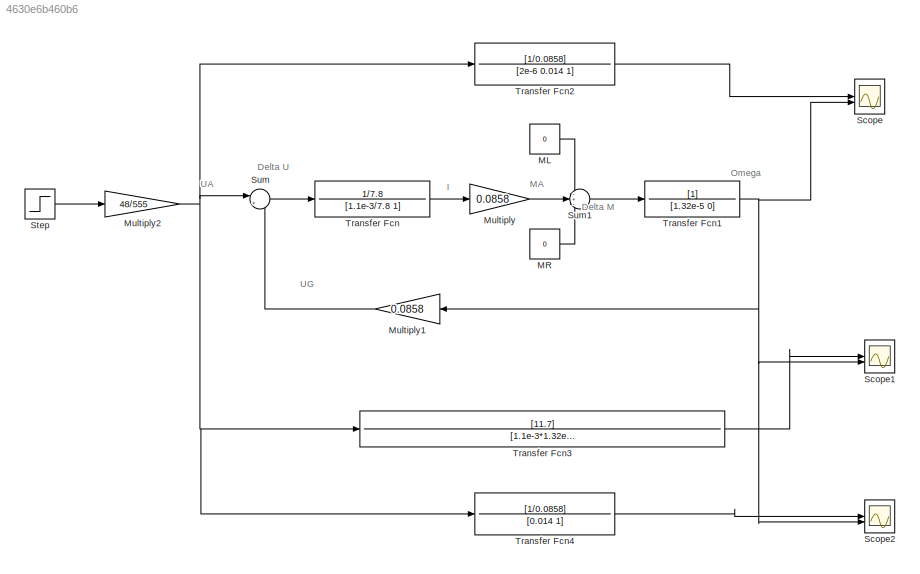
MODEL slx_4630e6b460b6
KIND model
CONFIG AbsTol = auto
CONFIG EnableMultiTasking = off
CONFIG FixedStep = auto
CONFIG MaxStep = auto
CONFIG MinStep = auto
CONFIG RelTol = 1e-3
CONFIG SampleTimeConstraint = Unconstrained
CONFIG SolverName = VariableStepAuto
CONFIG StartTime = 0.0
CONFIG StopTime = 2
BLOCK [Constant] ML
  Value = 0
BLOCK [Constant] MR
  Value = 0
BLOCK [Gain] Multiply
  Gain = 0.0858
BLOCK [Gain] Multiply1
  Gain = 0.0858
  NameLocation = top
BLOCK [Gain] Multiply2
  Gain = 48/555
BLOCK [Scope] Scope
  Floating = off
  NumInputPorts = 2
  ScopeSpecificationString = Simulink.scopes.TimeScopeBlockCfg('CurrentConfiguration', extmgr.ConfigurationSet(extmgr.Configuration('Core','General UI',true),extmgr.Configuration('Core','Source UI',true),extmgr.Configuration('Sources','WiredSimulink',true),extmgr.Configuration('Visuals','Time Domain',true,'SerializedDisplays',{struct('MinYLimReal','-69.93079','MaxYLimReal','629.37708','YLabelReal','','MinYLimMag','0.00000','M...<+1472ch>
BLOCK [Scope] Scope1
  Floating = off
  NumInputPorts = 2
  ScopeSpecificationString = Simulink.scopes.TimeScopeBlockCfg('CurrentConfiguration', extmgr.ConfigurationSet(extmgr.Configuration('Core','General UI',true),extmgr.Configuration('Core','Source UI',true),extmgr.Configuration('Sources','WiredSimulink',true,'DataLoggingVariableName','ScopeData1'),extmgr.Configuration('Visuals','Time Domain',true,'SerializedDisplays',{struct('MinYLimReal','-70.20072','MaxYLimReal','631.80647','Y...<+1466ch>
BLOCK [Scope] Scope2
  Floating = off
  NumInputPorts = 2
  ScopeSpecificationString = Simulink.scopes.TimeScopeBlockCfg('CurrentConfiguration', extmgr.ConfigurationSet(extmgr.Configuration('Core','General UI',true),extmgr.Configuration('Core','Source UI',true),extmgr.Configuration('Sources','WiredSimulink',true,'DataLoggingVariableName','ScopeData2'),extmgr.Configuration('Visuals','Time Domain',true,'SerializedDisplays',{struct('MinYLimReal','-4.42702','MaxYLimReal','4.37616','YLab...<+1485ch>
BLOCK [Step] Step
  After = 555
  SampleTime = 0
BLOCK [Sum] Sum
  Inputs = |+-
BLOCK [Sum] Sum1
  Inputs = -+-
BLOCK [TransferFcn] Transfer Fcn
  Denominator = [1.1e-3/7.8 1]
  Numerator = 1/7.8
BLOCK [TransferFcn] Transfer Fcn1
  Denominator = [1.32e-5 0]
BLOCK [TransferFcn] Transfer Fcn2
  Denominator = [2e-6 0.014 1]
  Numerator = [1/0.0858]
BLOCK [TransferFcn] Transfer Fcn3
  Denominator = [1.1e-3*1.32e-5/0.0858^2 1.32e-5*7.8/0.0858^2 1]
  Numerator = [11.7]
BLOCK [TransferFcn] Transfer Fcn4
  Denominator = [0.014 1]
  Numerator = [1/0.0858]
ANNOTATION (root): Delta M
ANNOTATION (root): Delta U
ANNOTATION (root): I
ANNOTATION (root): MA
ANNOTATION (root): Omega
ANNOTATION (root): UA
ANNOTATION (root): UG
LINE ML:1 -> Sum1:1
LINE MR:1 -> Sum1:3
LINE Multiply1:1 -> Sum:2
NET Multiply2:1 -> Sum:1, Transfer Fcn2:1, Transfer Fcn3:1, Transfer Fcn4:1
LINE Multiply:1 -> Sum1:2
LINE Step:1 -> Multiply2:1
LINE Sum1:1 -> Transfer Fcn1:1
LINE Sum:1 -> Transfer Fcn:1
NET Transfer Fcn1:1 -> Multiply1:1, Scope1:2, Scope2:2, Scope:2
LINE Transfer Fcn2:1 -> Scope:1
LINE Transfer Fcn3:1 -> Scope1:1
LINE Transfer Fcn4:1 -> Scope2:1
LINE Transfer Fcn:1 -> Multiply:1
note: NET lines group one-source signal fan-out (src -> all destinations, sorted); 1:1 wires keep LINE
